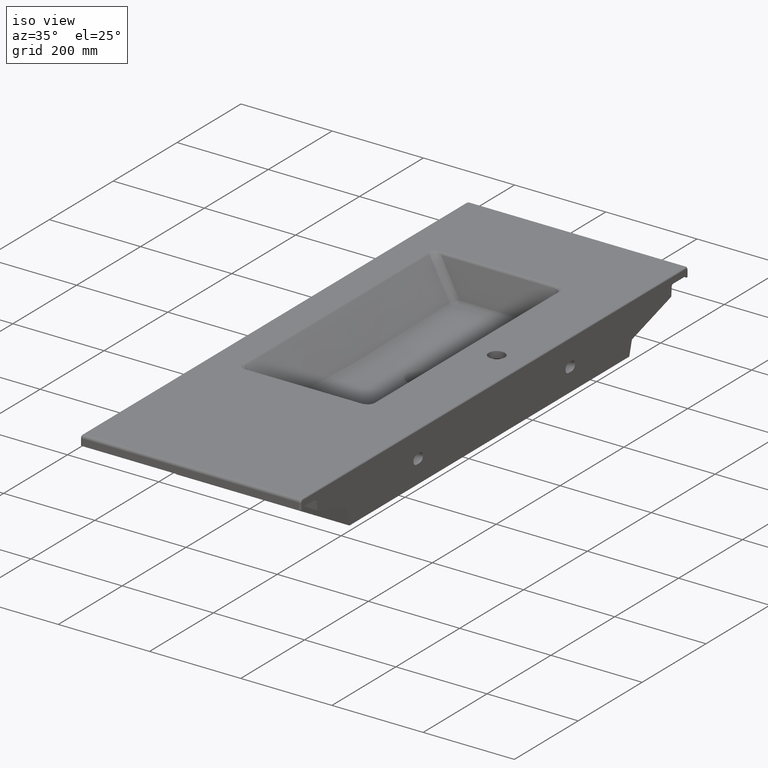
[diagram: clean part render]
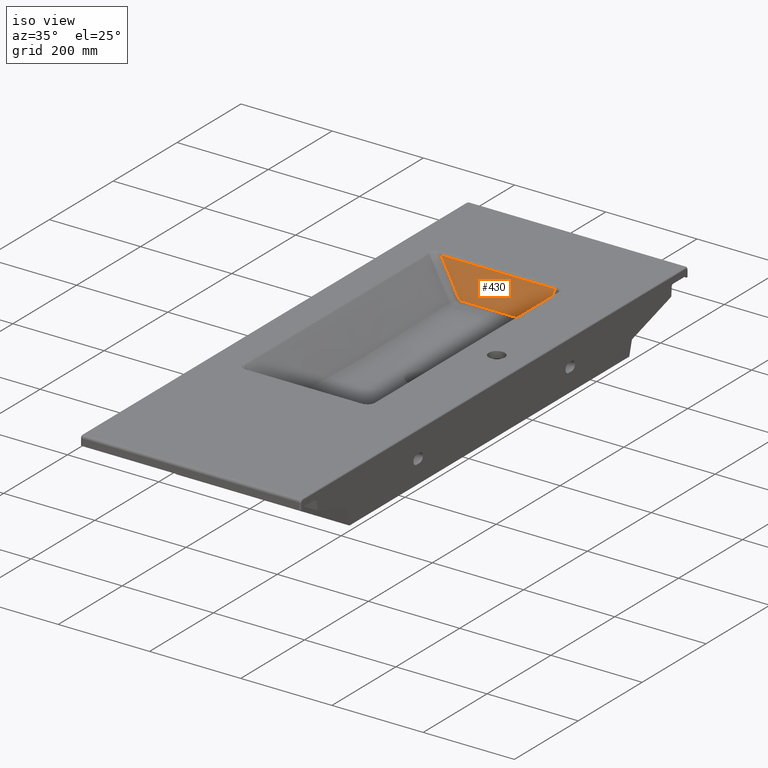
[diagram: same view with one face highlighted and labeled with its STEP entity id]
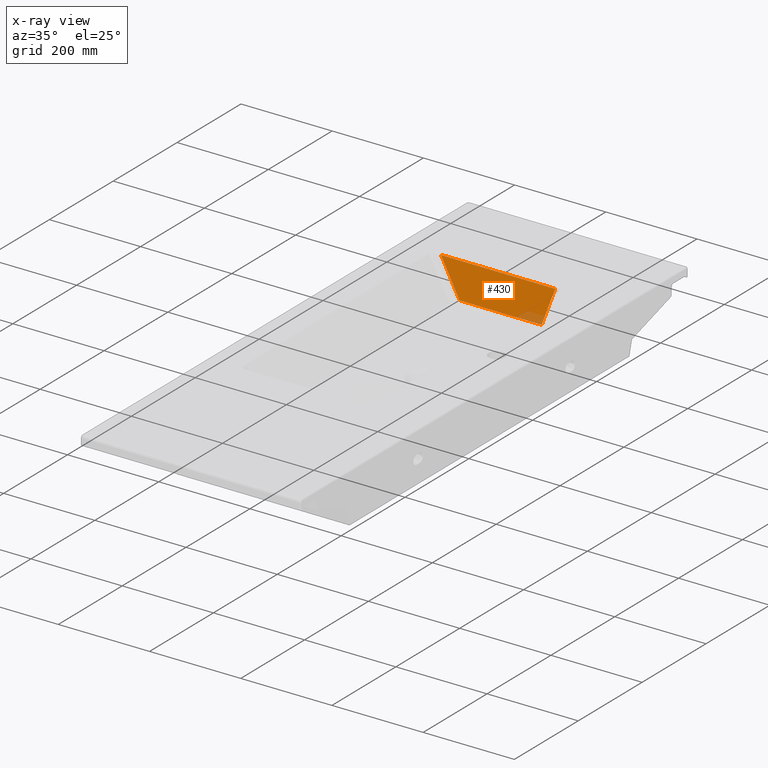
[diagram: x-ray of the same camera — body ghosted, the highlighted face saturated]
A machine part, iso view. The second image highlights one B-rep face of the part: STEP entity #430.
The next image is the same camera in x-ray: the body ghosted, the highlighted face saturated — about 5% of this face is hidden behind the body in this view.
In plain terms, the highlighted planar face has unit normal (0, -0.9511, 0.309).
Its self-contained STEP definition (entity closure, byte-faithful):
#290=FACE_OUTER_BOUND('',#686,.T.);
#430=ADVANCED_FACE('',(#290),#570,.T.);
#570=PLANE('',#2660);
#686=EDGE_LOOP('',(#1150,#1151,#1152,#1153));
#884=B_SPLINE_CURVE_WITH_KNOTS('',3,(#3961,#3962,#3963,#3964,#3965,#3966,
#3967,#3968,#3969,#3970,#3971,#3972,#3973),.UNSPECIFIED.,.F.,.F.,(4,3,3,
3,4),(0.,0.3940906962376,0.694414208408962,0.994737720701377,1.),
 .UNSPECIFIED.);
#885=B_SPLINE_CURVE_WITH_KNOTS('',3,(#3975,#3976,#3977,#3978),
 .UNSPECIFIED.,.F.,.F.,(4,4),(0.,1.),.UNSPECIFIED.);
#1150=ORIENTED_EDGE('',*,*,#2124,.T.);
#1151=ORIENTED_EDGE('',*,*,#2125,.T.);
#1152=ORIENTED_EDGE('',*,*,#2126,.T.);
#1153=ORIENTED_EDGE('',*,*,#2127,.T.);
#1863=VERTEX_POINT('',#3957);
#1864=VERTEX_POINT('',#3958);
#1865=VERTEX_POINT('',#3960);
#1866=VERTEX_POINT('',#3974);
#2124=EDGE_CURVE('',#1863,#1864,#2439,.T.);
#2125=EDGE_CURVE('',#1864,#1865,#2440,.T.);
#2126=EDGE_CURVE('',#1865,#1866,#884,.T.);
#2127=EDGE_CURVE('',#1866,#1863,#885,.T.);
#2439=LINE('',#3956,#2559);
#2440=LINE('',#3959,#2560);
#2559=VECTOR('',#2846,1.);
#2560=VECTOR('',#2847,1.);
#2660=AXIS2_PLACEMENT_3D('',#3979,#2848,#2849);
#2846=DIRECTION('',(0.198145017375067,0.302891975664068,0.932199014785873));
#2847=DIRECTION('',(-0.999999999390827,3.14709160442356E-18,3.49048234856361E-5));
#2848=DIRECTION('',(1.07861806768281E-5,-0.951056543903812,0.309016909215976));
#2849=DIRECTION('',(-3.33297595810911E-5,0.309016908720407,0.951056543541976));
#3956=CARTESIAN_POINT('',(97.2587337840306,421.361090500852,2.65212346786424));
#3957=CARTESIAN_POINT('',(81.5279513578657,397.314420890263,-71.3553891799258));
#3958=CARTESIAN_POINT('',(95.814196629697,419.152916314124,-4.14388952267408));
#3959=CARTESIAN_POINT('',(116.051619513889,419.152916314124,-4.1445959063481));
#3960=CARTESIAN_POINT('',(-154.317151441658,419.152916314125,-4.13515873211613));
#3961=CARTESIAN_POINT('',(-154.317151441658,419.152916314125,-4.13515873211613));
#3962=CARTESIAN_POINT('',(-147.020420702528,416.311928318269,-12.8790780707783));
#3963=CARTESIAN_POINT('',(-139.724345343803,413.470779568785,-21.6234921355078));
#3964=CARTESIAN_POINT('',(-132.428979732693,410.629456810042,-30.368441721061));
#3965=CARTESIAN_POINT('',(-126.86942238261,408.464178512917,-37.032679174825));
#3966=CARTESIAN_POINT('',(-121.310277294839,406.298799127465,-43.6972277321725));
#3967=CARTESIAN_POINT('',(-115.751570866957,404.133312221162,-50.362107189467));
#3968=CARTESIAN_POINT('',(-110.192864437744,401.967825314339,-57.0269866483582));
#3969=CARTESIAN_POINT('',(-104.634596631596,399.802230881761,-63.6921970222859));
#3970=CARTESIAN_POINT('',(-99.076796097677,397.63652194591,-70.3577597848508));
#3971=CARTESIAN_POINT('',(-98.9794121182015,397.598574316579,-70.474554013665));
#3972=CARTESIAN_POINT('',(-98.8820282822461,397.560626652076,-70.5913483507202));
#3973=CARTESIAN_POINT('',(-98.7846445899717,397.522678952363,-70.7081427961367));
#3974=CARTESIAN_POINT('',(-98.7846445899717,397.522678952363,-70.7081427961367));
#3975=CARTESIAN_POINT('',(-98.7846445899717,397.522678952363,-70.7081427961367));
#3976=CARTESIAN_POINT('',(-38.6830137240452,397.242829963429,-71.5715275214482));
#3977=CARTESIAN_POINT('',(21.421008790425,397.158976376264,-71.831700325108));
#3978=CARTESIAN_POINT('',(81.5279513578656,397.314420890263,-71.3553891799257));
#3979=CARTESIAN_POINT('',(116.048531039829,390.403143415288,-92.6273254995183));